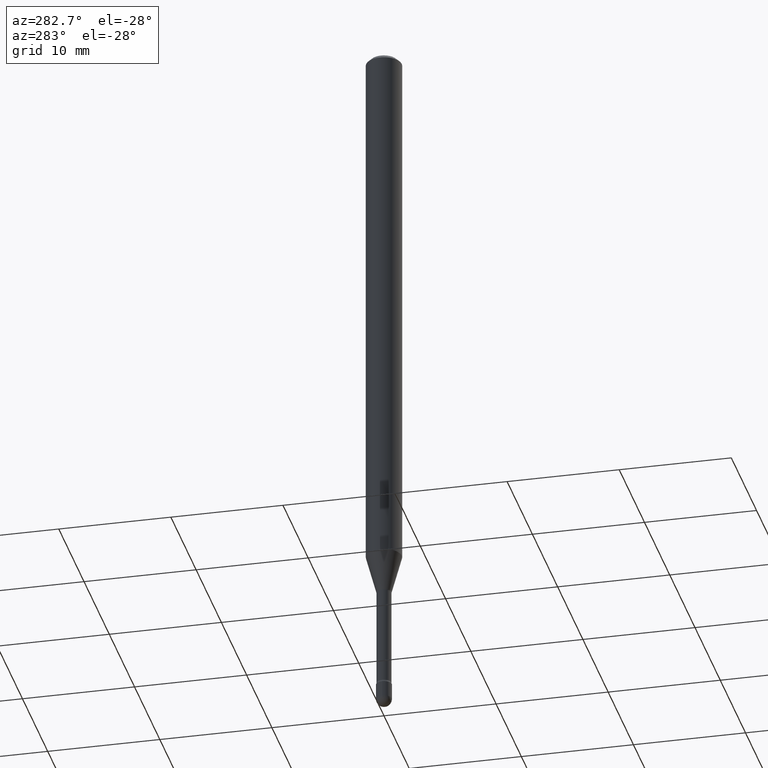
[diagram: clean part render]
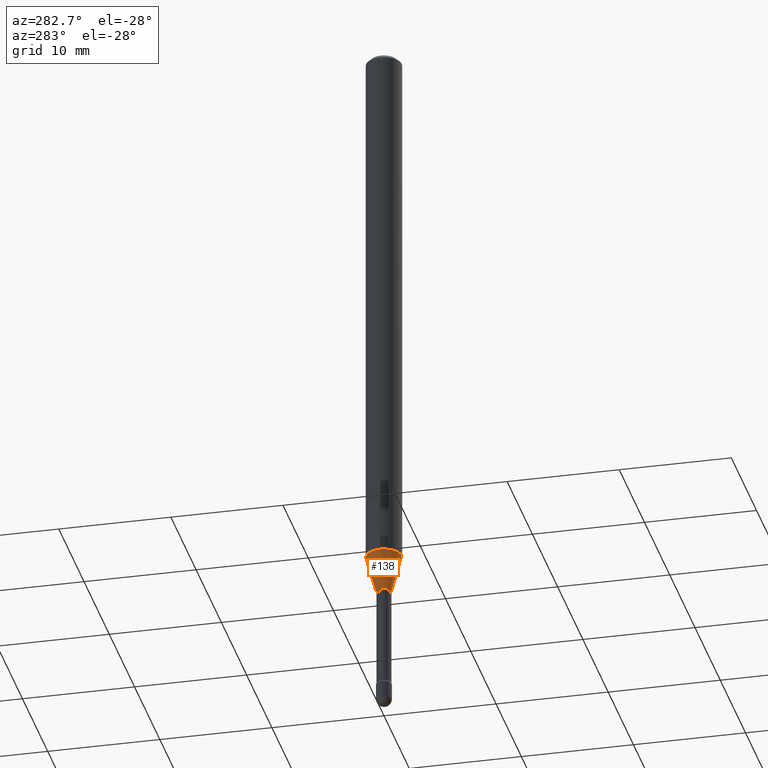
[diagram: same view with one face highlighted and labeled with its STEP entity id]
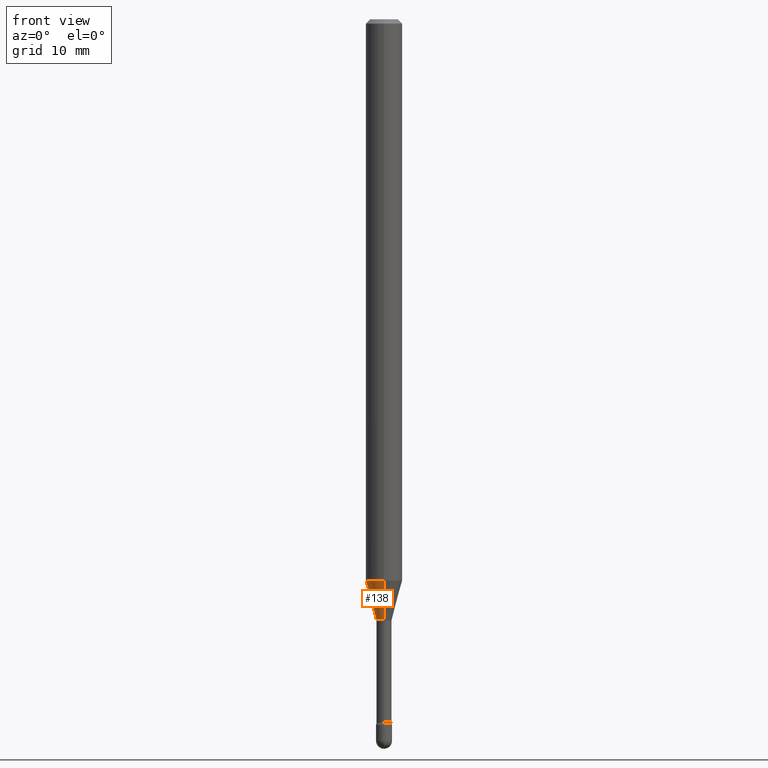
[diagram: same view with one face highlighted and labeled with its STEP entity id]
A machine part, auxiliary view. The second image highlights one B-rep face of the part: STEP entity #138.
A second angle (front view) of the same face is appended — the face is thin or edge-on in the first view.
In plain terms, the highlighted conical surface has half-angle 15 deg.
Its self-contained STEP definition (entity closure, byte-faithful):
#9 = CARTESIAN_POINT ( 'NONE',  ( 4.440892098501093562E-16, 0.06249999999999326233, -1.923220337902601162 ) ) ;
#25 = CARTESIAN_POINT ( 'NONE',  ( -1.840786654675861532E-16, -0.02636111260567115810, -2.058092501787273321 ) ) ;
#38 = CIRCLE ( 'NONE', #446, 0.06250000000000000000 ) ;
#55 = EDGE_CURVE ( 'NONE', #349, #147, #116, .T. ) ;
#76 = DIRECTION ( 'NONE',  ( -2.445394526071442946E-29, 3.491587712193716491E-15, 1.000000000000000000 ) ) ;
#116 = LINE ( 'NONE', #432, #201 ) ;
#128 = CARTESIAN_POINT ( 'NONE',  ( 5.032848138019279086E-29, -7.186010489798467438E-15, -2.058092501787273321 ) ) ;
#130 = LINE ( 'NONE', #266, #406 ) ;
#138 = ADVANCED_FACE ( 'NONE', ( #530 ), #481, .T. ) ;
#147 = VERTEX_POINT ( 'NONE', #395 ) ;
#187 = VERTEX_POINT ( 'NONE', #316 ) ;
#201 = VECTOR ( 'NONE', #302, 39.37007874015748854 ) ;
#206 = VERTEX_POINT ( 'NONE', #9 ) ;
#220 = DIRECTION ( 'NONE',  ( -6.982962677686265922E-15, -1.000000000000000000, 0.000000000000000000 ) ) ;
#238 = EDGE_CURVE ( 'NONE', #187, #206, #130, .T. ) ;
#253 = ORIENTED_EDGE ( 'NONE', *, *, #318, .T. ) ;
#266 = CARTESIAN_POINT ( 'NONE',  ( 1.873069706851357136E-16, 0.02636111260565679112, -2.058092501787273321 ) ) ;
#269 = DIRECTION ( 'NONE',  ( -2.445394526071442946E-29, 3.491587712193716491E-15, 1.000000000000000000 ) ) ;
#302 = DIRECTION ( 'NONE',  ( -1.807323732225326589E-15, -0.2588190451025176864, 0.9659258262890690894 ) ) ;
#304 = ORIENTED_EDGE ( 'NONE', *, *, #55, .T. ) ;
#305 = CIRCLE ( 'NONE', #437, 0.02636111260566397288 ) ;
#316 = CARTESIAN_POINT ( 'NONE',  ( 3.156980902676227198E-16, 0.02636111260565679112, -2.058092501787273321 ) ) ;
#318 = EDGE_CURVE ( 'NONE', #187, #349, #305, .T. ) ;
#323 = ORIENTED_EDGE ( 'NONE', *, *, #439, .F. ) ;
#349 = VERTEX_POINT ( 'NONE', #25 ) ;
#387 = DIRECTION ( 'NONE',  ( -6.982962677686265922E-15, -1.000000000000000000, 4.370956789862821150E-15 ) ) ;
#395 = CARTESIAN_POINT ( 'NONE',  ( -4.364351673553447815E-16, -0.06250000000000673073, -1.923220337902600718 ) ) ;
#406 = VECTOR ( 'NONE', #533, 39.37007874015748143 ) ;
#432 = CARTESIAN_POINT ( 'NONE',  ( -1.840786654675861532E-16, -0.02636111260567115810, -2.058092501787273321 ) ) ;
#437 = AXIS2_PLACEMENT_3D ( 'NONE', #454, #450, #543 ) ;
#439 = EDGE_CURVE ( 'NONE', #206, #147, #38, .T. ) ;
#446 = AXIS2_PLACEMENT_3D ( 'NONE', #468, #76, #387 ) ;
#450 = DIRECTION ( 'NONE',  ( -2.445394526071442946E-29, 3.491587712193716491E-15, 1.000000000000000000 ) ) ;
#451 = ORIENTED_EDGE ( 'NONE', *, *, #238, .F. ) ;
#454 = CARTESIAN_POINT ( 'NONE',  ( 5.032848138019279086E-29, -7.186010489798467438E-15, -2.058092501787273321 ) ) ;
#468 = CARTESIAN_POINT ( 'NONE',  ( 4.703032486736291422E-29, -6.715092499661768359E-15, -1.923220337902600940 ) ) ;
#481 = CONICAL_SURFACE ( 'NONE', #510, 0.02636111260566397288, 0.2617993877991497409 ) ;
#510 = AXIS2_PLACEMENT_3D ( 'NONE', #128, #269, #220 ) ;
#530 = FACE_OUTER_BOUND ( 'NONE', #553, .T. ) ;
#533 = DIRECTION ( 'NONE',  ( 1.839019923739596765E-15, 0.2588190451025244587, 0.9659258262890673130 ) ) ;
#543 = DIRECTION ( 'NONE',  ( -6.982962677686265922E-15, -1.000000000000000000, 0.000000000000000000 ) ) ;
#553 = EDGE_LOOP ( 'NONE', ( #451, #253, #304, #323 ) ) ;